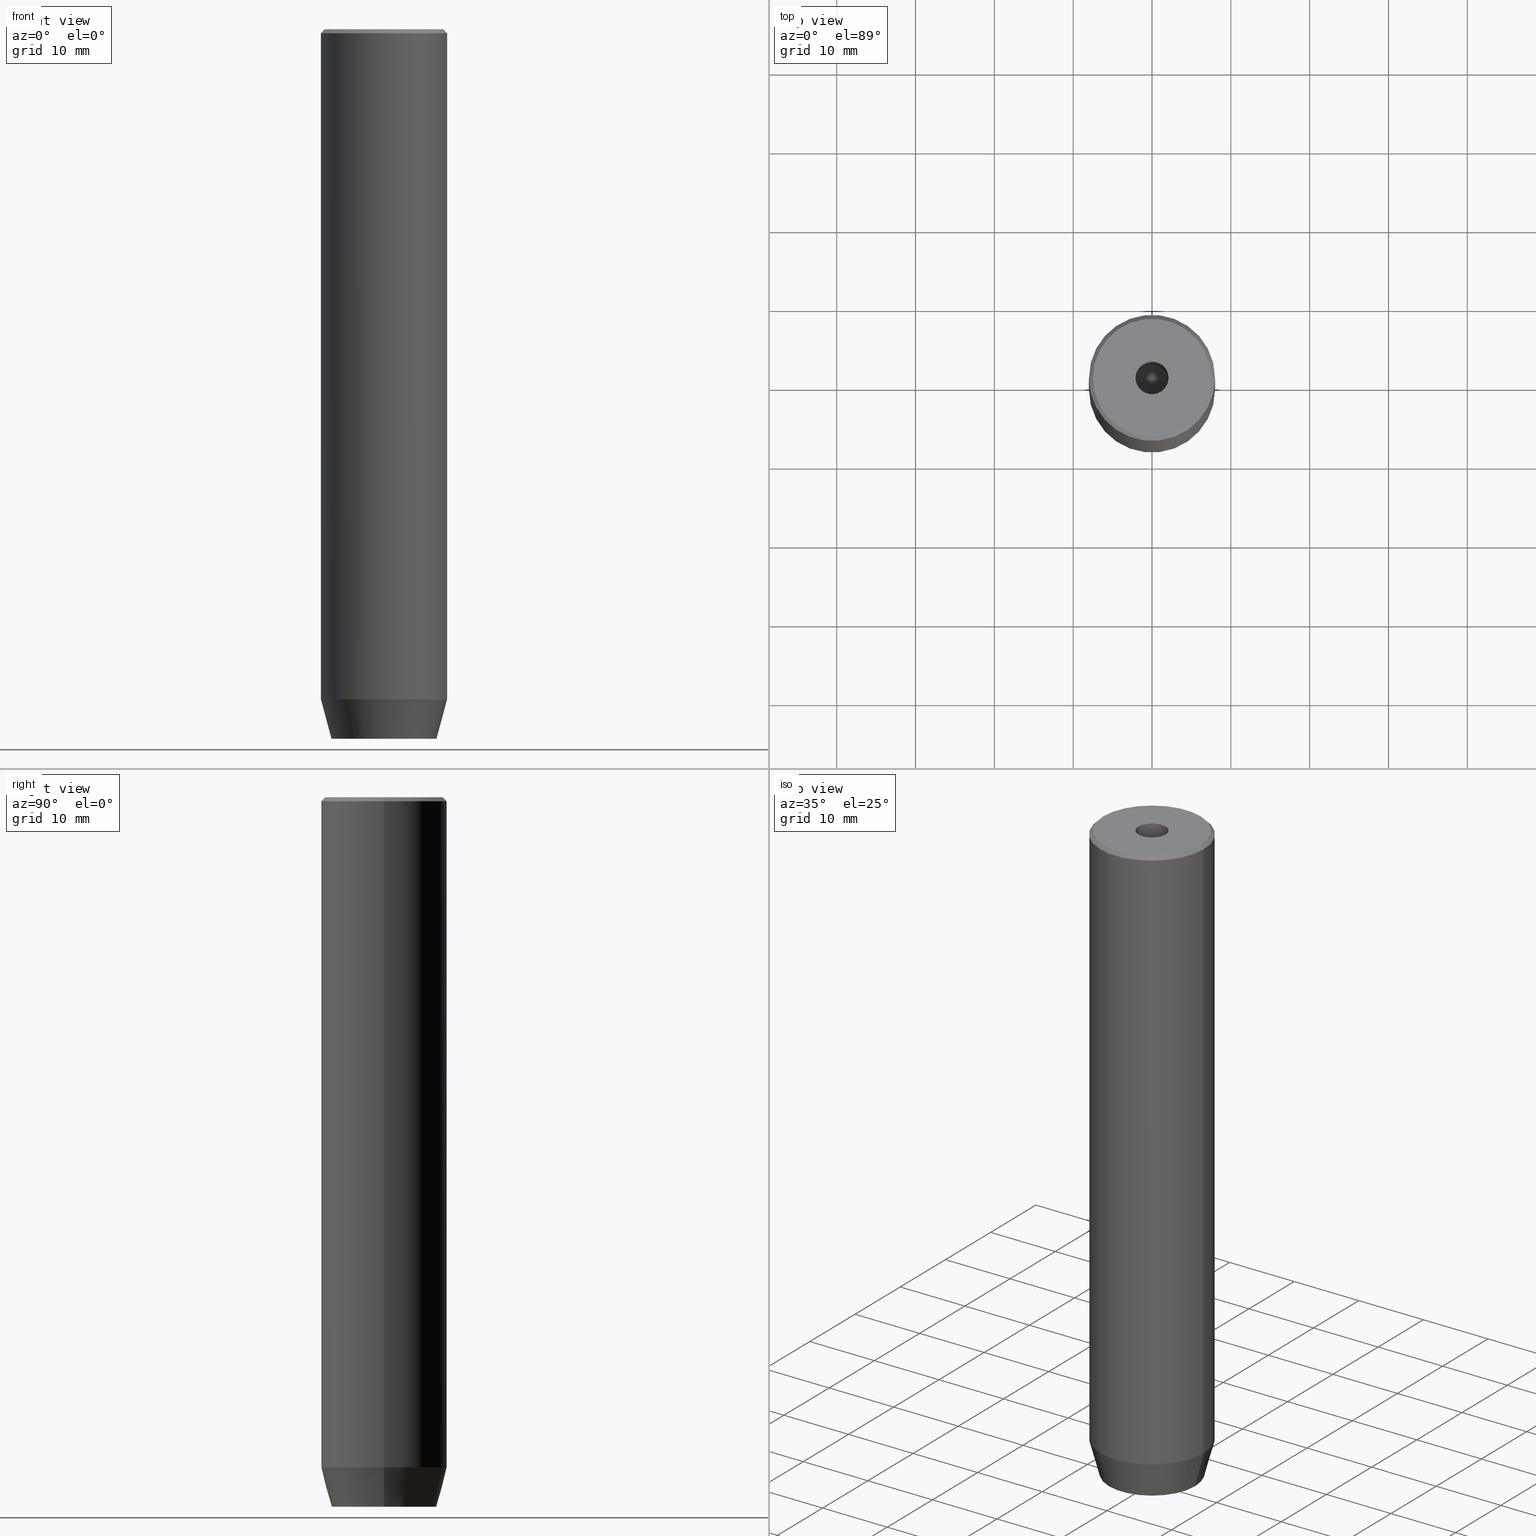
[diagram: canonical four-view strip — front | top / right | iso, engineering-drawing reading convention]
A machine part, canonical four-view strip (front | top / right | iso — engineering-drawing reading convention). The complete STEP part file that produces these views, byte-faithful:
ISO-10303-21;
HEADER;
FILE_DESCRIPTION (( 'STEP AP203' ),
    '1' );
FILE_NAME ('a7f0.STEP',
    '2024-01-02T20:40:24',
    ( '' ),
    ( '' ),
    'SwSTEP 2.0',
    'SolidWorks 2019',
    '' );
FILE_SCHEMA (( 'CONFIG_CONTROL_DESIGN' ));
ENDSEC;

DATA;
#1 = APPROVAL_ROLE ( '' ) ;
#2 = FACE_OUTER_BOUND ( 'NONE', #37, .T. ) ;
#3 = VERTEX_POINT ( 'NONE', #265 ) ;
#4 = AXIS2_PLACEMENT_3D ( 'NONE', #175, #122, #26 ) ;
#5 = PERSON ( 'NEUR�EN�', 'NEUR�EN�', 'NEUR�EN�', ('NEUR�EN�'), ('NEUR�EN�'), ('NEUR�EN�') ) ;
#6 = APPROVAL_STATUS ( 'not_yet_approved' ) ;
#7 = DIRECTION ( 'NONE',  ( -0.000000000000000000, -0.000000000000000000, 1.000000000000000000 ) ) ;
#8 = ORIENTED_EDGE ( 'NONE', *, *, #526, .T. ) ;
#9 = EDGE_CURVE ( 'NONE', #354, #73, #356, .T. ) ;
#10 = ORIENTED_EDGE ( 'NONE', *, *, #445, .F. ) ;
#11 = CIRCLE ( 'NONE', #87, 6.660254037844381969 ) ;
#12 = APPROVAL_PERSON_ORGANIZATION ( #50, #282, #502 ) ;
#13 = ORIENTED_EDGE ( 'NONE', *, *, #548, .F. ) ;
#14 = VERTEX_POINT ( 'NONE', #544 ) ;
#15 = EDGE_CURVE ( 'NONE', #387, #307, #323, .T. ) ;
#16 = ORIENTED_EDGE ( 'NONE', *, *, #381, .F. ) ;
#17 = FACE_OUTER_BOUND ( 'NONE', #120, .T. ) ;
#18 = ADVANCED_FACE ( 'NONE', ( #2 ), #178, .T. ) ;
#19 = AXIS2_PLACEMENT_3D ( 'NONE', #553, #418, #471 ) ;
#20 = ORIENTED_EDGE ( 'NONE', *, *, #512, .F. ) ;
#21 = LOCAL_TIME ( 21, 40, 24.00000000000000000, #496 ) ;
#22 = CARTESIAN_POINT ( 'NONE',  ( -2.168404344971008868E-16, -3.464101615137754830, -90.00000000000000000 ) ) ;
#23 = CYLINDRICAL_SURFACE ( 'NONE', #481, 2.099999999999997424 ) ;
#24 = ORIENTED_EDGE ( 'NONE', *, *, #518, .F. ) ;
#25 = EDGE_CURVE ( 'NONE', #479, #351, #451, .T. ) ;
#26 = DIRECTION ( 'NONE',  ( 1.000000000000000000, 0.000000000000000000, 0.000000000000000000 ) ) ;
#27 = CARTESIAN_POINT ( 'NONE',  ( 2.099999999999996092, 0.000000000000000000, -20.00000000000000000 ) ) ;
#28 = ORIENTED_EDGE ( 'NONE', *, *, #126, .F. ) ;
#29 = EDGE_CURVE ( 'NONE', #193, #351, #276, .T. ) ;
#30 = CARTESIAN_POINT ( 'NONE',  ( 0.000000000000000000, 0.000000000000000000, -20.00000000000000000 ) ) ;
#31 = DIRECTION ( 'NONE',  ( -0.000000000000000000, -0.000000000000000000, 1.000000000000000000 ) ) ;
#32 = VECTOR ( 'NONE', #408, 1000.000000000000000 ) ;
#33 = ORIENTED_EDGE ( 'NONE', *, *, #15, .T. ) ;
#34 = VECTOR ( 'NONE', #106, 1000.000000000000114 ) ;
#35 = LINE ( 'NONE', #487, #327 ) ;
#36 = CARTESIAN_POINT ( 'NONE',  ( -2.168404344971008868E-16, -3.464101615137754830, -87.20000000000000284 ) ) ;
#37 = EDGE_LOOP ( 'NONE', ( #24, #516, #100, #520 ) ) ;
#38 = CARTESIAN_POINT ( 'NONE',  ( 0.000000000000000000, 0.000000000000000000, 0.000000000000000000 ) ) ;
#39 = CARTESIAN_POINT ( 'NONE',  ( 0.000000000000000000, 0.000000000000000000, -84.99999999999998579 ) ) ;
#40 = APPLICATION_PROTOCOL_DEFINITION ( 'international standard', 'config_control_design', 1994, #336 ) ;
#41 = DIRECTION ( 'NONE',  ( 0.000000000000000000, 0.000000000000000000, -1.000000000000000000 ) ) ;
#42 = DIRECTION ( 'NONE',  ( 1.000000000000000000, 0.000000000000000000, 0.000000000000000000 ) ) ;
#43 = ORIENTED_EDGE ( 'NONE', *, *, #126, .T. ) ;
#44 = CC_DESIGN_PERSON_AND_ORGANIZATION_ASSIGNMENT ( #233, #551, ( #537 ) ) ;
#45 = AXIS2_PLACEMENT_3D ( 'NONE', #246, #294, #251 ) ;
#46 = AXIS2_PLACEMENT_3D ( 'NONE', #473, #183, #480 ) ;
#47 = CARTESIAN_POINT ( 'NONE',  ( -2.168404344971008868E-16, 3.464101615137754830, -90.00000000000000000 ) ) ;
#48 = DATE_AND_TIME ( #190, #432 ) ;
#49 = LINE ( 'NONE', #421, #514 ) ;
#50 = PERSON_AND_ORGANIZATION ( #5, #422 ) ;
#51 = DIRECTION ( 'NONE',  ( 1.000000000000000000, 0.000000000000000000, 0.000000000000000000 ) ) ;
#52 = DATE_TIME_ROLE ( 'classification_date' ) ;
#53 = EDGE_LOOP ( 'NONE', ( #198, #174, #243, #160 ) ) ;
#54 = AXIS2_PLACEMENT_3D ( 'NONE', #57, #197, #62 ) ;
#55 = COORDINATED_UNIVERSAL_TIME_OFFSET ( 1, 0, .AHEAD. ) ;
#56 = EDGE_LOOP ( 'NONE', ( #391, #572, #300 ) ) ;
#57 = CARTESIAN_POINT ( 'NONE',  ( 0.000000000000000000, 0.000000000000000000, -20.00000000000000000 ) ) ;
#58 = ORIENTED_EDGE ( 'NONE', *, *, #134, .F. ) ;
#59 = LINE ( 'NONE', #288, #558 ) ;
#60 = CIRCLE ( 'NONE', #396, 2.099999999999996092 ) ;
#61 = ORIENTED_EDGE ( 'NONE', *, *, #376, .F. ) ;
#62 = DIRECTION ( 'NONE',  ( 1.000000000000000000, 0.000000000000000000, 0.000000000000000000 ) ) ;
#63 = EDGE_CURVE ( 'NONE', #124, #430, #49, .T. ) ;
#64 = DIRECTION ( 'NONE',  ( 0.8660254037844385966, -0.5000000000000001110, 0.000000000000000000 ) ) ;
#65 = ORIENTED_EDGE ( 'NONE', *, *, #69, .T. ) ;
#66 = CARTESIAN_POINT ( 'NONE',  ( 0.000000000000000000, 0.000000000000000000, -87.20000000000000284 ) ) ;
#67 = DIRECTION ( 'NONE',  ( 0.5000000000000001110, 0.8660254037844385966, -0.000000000000000000 ) ) ;
#68 = AXIS2_PLACEMENT_3D ( 'NONE', #489, #571, #350 ) ;
#69 = EDGE_CURVE ( 'NONE', #307, #3, #186, .T. ) ;
#70 = EDGE_LOOP ( 'NONE', ( #232, #559, #8, #439, #250, #281 ) ) ;
#71 = DIRECTION ( 'NONE',  ( 0.5000000000000001110, -0.8660254037844385966, 0.000000000000000000 ) ) ;
#72 = LINE ( 'NONE', #528, #270 ) ;
#73 = VERTEX_POINT ( 'NONE', #131 ) ;
#74 = FACE_BOUND ( 'NONE', #76, .T. ) ;
#75 = CARTESIAN_POINT ( 'NONE',  ( 0.000000000000000000, 0.000000000000000000, 0.000000000000000000 ) ) ;
#76 = EDGE_LOOP ( 'NONE', ( #579, #484 ) ) ;
#77 = CARTESIAN_POINT ( 'NONE',  ( -8.000000000000000000, 9.797174393178825657E-16, 0.000000000000000000 ) ) ;
#78 = LINE ( 'NONE', #337, #155 ) ;
#79 = CIRCLE ( 'NONE', #154, 7.499999999999978684 ) ;
#80 = ORIENTED_EDGE ( 'NONE', *, *, #15, .F. ) ;
#81 = LINE ( 'NONE', #218, #102 ) ;
#82 = CARTESIAN_POINT ( 'NONE',  ( -6.660254037844381969, 8.976816591066591237E-16, -90.00000000000000000 ) ) ;
#83 = ORIENTED_EDGE ( 'NONE', *, *, #402, .T. ) ;
#84 = CALENDAR_DATE ( 2024, 2, 1 ) ;
#85 = ORIENTED_EDGE ( 'NONE', *, *, #425, .F. ) ;
#86 = CARTESIAN_POINT ( 'NONE',  ( 1.500000000000000222, -2.598076211353315568, -87.20000000000000284 ) ) ;
#87 = AXIS2_PLACEMENT_3D ( 'NONE', #497, #318, #260 ) ;
#88 = DIRECTION ( 'NONE',  ( 1.000000000000000000, 0.000000000000000000, 0.000000000000000000 ) ) ;
#89 = COORDINATED_UNIVERSAL_TIME_OFFSET ( 1, 0, .AHEAD. ) ;
#90 = FACE_OUTER_BOUND ( 'NONE', #326, .T. ) ;
#91 = PERSON_AND_ORGANIZATION ( #5, #422 ) ;
#92 = VERTEX_POINT ( 'NONE', #188 ) ;
#93 = UNCERTAINTY_MEASURE_WITH_UNIT (LENGTH_MEASURE( 1.000000000000000082E-05 ), #543, 'distance_accuracy_value', 'NONE');
#94 = CLOSED_SHELL ( 'NONE', ( #264, #586, #556, #237, #274, #392, #527, #18, #192, #151, #324, #506, #322, #409, #280, #293, #504, #147, #325 ) ) ;
#95 = AXIS2_PLACEMENT_3D ( 'NONE', #277, #355, #132 ) ;
#96 = CC_DESIGN_APPROVAL ( #152, ( #537 ) ) ;
#97 = APPROVAL_DATE_TIME ( #374, #110 ) ;
#98 = CC_DESIGN_PERSON_AND_ORGANIZATION_ASSIGNMENT ( #275, #135, ( #257 ) ) ;
#99 = SHAPE_DEFINITION_REPRESENTATION ( #305, #463 ) ;
#100 = ORIENTED_EDGE ( 'NONE', *, *, #189, .T. ) ;
#101 = ORIENTED_EDGE ( 'NONE', *, *, #142, .F. ) ;
#102 = VECTOR ( 'NONE', #161, 1000.000000000000000 ) ;
#103 = ORIENTED_EDGE ( 'NONE', *, *, #388, .F. ) ;
#104 = DIRECTION ( 'NONE',  ( -0.000000000000000000, -0.000000000000000000, 1.000000000000000000 ) ) ;
#105 = ORIENTED_EDGE ( 'NONE', *, *, #563, .T. ) ;
#106 = DIRECTION ( 'NONE',  ( 0.7071067811865474617, 8.659560562354932858E-17, -0.7071067811865474617 ) ) ;
#107 = DIRECTION ( 'NONE',  ( 0.8660254037844385966, -0.5000000000000001110, 0.000000000000000000 ) ) ;
#108 = ORIENTED_EDGE ( 'NONE', *, *, #518, .T. ) ;
#109 = CARTESIAN_POINT ( 'NONE',  ( -3.000000000000000000, -1.732050807568877859, -87.20000000000000284 ) ) ;
#110 = APPROVAL ( #6, 'NEUR�EN�' ) ;
#111 = FACE_OUTER_BOUND ( 'NONE', #328, .T. ) ;
#112 = CONICAL_SURFACE ( 'NONE', #357, 8.000000000000000000, 0.2617993877991500740 ) ;
#113 = EDGE_LOOP ( 'NONE', ( #144, #108, #365, #338 ) ) ;
#114 = AXIS2_PLACEMENT_3D ( 'NONE', #268, #407, #384 ) ;
#115 = LINE ( 'NONE', #205, #541 ) ;
#116 = CARTESIAN_POINT ( 'NONE',  ( -1.499999999999999556, 2.598076211353316012, -87.20000000000000284 ) ) ;
#117 = ORIENTED_EDGE ( 'NONE', *, *, #121, .F. ) ;
#118 = LINE ( 'NONE', #437, #310 ) ;
#119 = FACE_OUTER_BOUND ( 'NONE', #113, .T. ) ;
#120 = EDGE_LOOP ( 'NONE', ( #170, #291, #536, #217 ) ) ;
#121 = EDGE_CURVE ( 'NONE', #569, #577, #317, .T. ) ;
#122 = DIRECTION ( 'NONE',  ( 0.000000000000000000, 0.000000000000000000, -1.000000000000000000 ) ) ;
#123 = DIRECTION ( 'NONE',  ( -2.503857664561932376E-16, 1.000000000000000000, 0.000000000000000000 ) ) ;
#124 = VERTEX_POINT ( 'NONE', #269 ) ;
#125 = AXIS2_PLACEMENT_3D ( 'NONE', #587, #539, #546 ) ;
#126 = EDGE_CURVE ( 'NONE', #213, #380, #79, .T. ) ;
#127 = FACE_OUTER_BOUND ( 'NONE', #428, .T. ) ;
#128 = PERSON_AND_ORGANIZATION ( #5, #422 ) ;
#129 = DIRECTION ( 'NONE',  ( -0.8660254037844385966, -0.5000000000000001110, 0.000000000000000000 ) ) ;
#130 = DIRECTION ( 'NONE',  ( -0.000000000000000000, -0.000000000000000000, -1.000000000000000000 ) ) ;
#131 = CARTESIAN_POINT ( 'NONE',  ( 6.660254037844381969, 0.000000000000000000, -90.00000000000000000 ) ) ;
#132 = DIRECTION ( 'NONE',  ( 1.000000000000000000, 0.000000000000000000, 0.000000000000000000 ) ) ;
#133 = LINE ( 'NONE', #542, #286 ) ;
#134 = EDGE_CURVE ( 'NONE', #351, #343, #360, .T. ) ;
#135 = PERSON_AND_ORGANIZATION_ROLE ( 'design_supplier' ) ;
#136 = DIRECTION ( 'NONE',  ( -0.000000000000000000, -0.000000000000000000, 1.000000000000000000 ) ) ;
#137 = AXIS2_PLACEMENT_3D ( 'NONE', #223, #503, #185 ) ;
#138 = AXIS2_PLACEMENT_3D ( 'NONE', #522, #578, #168 ) ;
#139 = APPROVAL_PERSON_ORGANIZATION ( #128, #152, #313 ) ;
#140 = DATE_AND_TIME ( #320, #212 ) ;
#141 = DIRECTION ( 'NONE',  ( 1.000000000000000000, 0.000000000000000000, 0.000000000000000000 ) ) ;
#142 = EDGE_CURVE ( 'NONE', #258, #3, #368, .T. ) ;
#143 = DATE_TIME_ROLE ( 'creation_date' ) ;
#144 = ORIENTED_EDGE ( 'NONE', *, *, #466, .T. ) ;
#145 = PERSON_AND_ORGANIZATION ( #5, #422 ) ;
#146 = VERTEX_POINT ( 'NONE', #321 ) ;
#147 = ADVANCED_FACE ( 'NONE', ( #90 ), #419, .F. ) ;
#148 = CIRCLE ( 'NONE', #179, 2.099999999999998757 ) ;
#149 = SECURITY_CLASSIFICATION_LEVEL ( 'unclassified' ) ;
#150 = EDGE_LOOP ( 'NONE', ( #284, #16, #20, #510, #534, #58 ) ) ;
#151 = ADVANCED_FACE ( 'NONE', ( #227 ), #431, .T. ) ;
#152 = APPROVAL ( #403, 'NEUR�EN�' ) ;
#153 = EDGE_LOOP ( 'NONE', ( #467, #43 ) ) ;
#154 = AXIS2_PLACEMENT_3D ( 'NONE', #225, #314, #184 ) ;
#155 = VECTOR ( 'NONE', #523, 1000.000000000000000 ) ;
#156 = DIRECTION ( 'NONE',  ( -0.000000000000000000, -0.000000000000000000, 1.000000000000000000 ) ) ;
#157 = APPLICATION_CONTEXT ( 'configuration controlled 3d designs of mechanical parts and assemblies' ) ;
#158 = EDGE_LOOP ( 'NONE', ( #80, #447, #427, #163 ) ) ;
#159 = CARTESIAN_POINT ( 'NONE',  ( -3.000000000000000000, -1.732050807568877859, -87.20000000000000284 ) ) ;
#160 = ORIENTED_EDGE ( 'NONE', *, *, #436, .F. ) ;
#161 = DIRECTION ( 'NONE',  ( 0.000000000000000000, -1.000000000000000000, 0.000000000000000000 ) ) ;
#162 = CARTESIAN_POINT ( 'NONE',  ( -8.000000000000000000, 9.797174393178825657E-16, -84.99999999999998579 ) ) ;
#163 = ORIENTED_EDGE ( 'NONE', *, *, #308, .T. ) ;
#164 = CARTESIAN_POINT ( 'NONE',  ( 3.000000000000000000, 0.000000000000000000, -87.20000000000000284 ) ) ;
#165 = CARTESIAN_POINT ( 'NONE',  ( 1.500000000000000222, 2.598076211353315568, -87.20000000000000284 ) ) ;
#166 = CC_DESIGN_APPROVAL ( #110, ( #457 ) ) ;
#167 = EDGE_LOOP ( 'NONE', ( #28, #383, #329, #488 ) ) ;
#168 = DIRECTION ( 'NONE',  ( 1.000000000000000000, 0.000000000000000000, 0.000000000000000000 ) ) ;
#169 = FACE_OUTER_BOUND ( 'NONE', #555, .T. ) ;
#170 = ORIENTED_EDGE ( 'NONE', *, *, #477, .T. ) ;
#171 = DIRECTION ( 'NONE',  ( -0.000000000000000000, -0.000000000000000000, 1.000000000000000000 ) ) ;
#172 = LINE ( 'NONE', #353, #583 ) ;
#173 = CARTESIAN_POINT ( 'NONE',  ( 0.000000000000000000, 0.000000000000000000, -20.00000000000000000 ) ) ;
#174 = ORIENTED_EDGE ( 'NONE', *, *, #469, .F. ) ;
#175 = CARTESIAN_POINT ( 'NONE',  ( 0.000000000000000000, 0.000000000000000000, -0.5000000000000213163 ) ) ;
#176 = DIRECTION ( 'NONE',  ( -0.8571673007021111124, 1.049727191138617217E-16, 0.5150380749100562650 ) ) ;
#177 = AXIS2_PLACEMENT_3D ( 'NONE', #552, #416, #141 ) ;
#178 = CYLINDRICAL_SURFACE ( 'NONE', #137, 8.000000000000000000 ) ;
#179 = AXIS2_PLACEMENT_3D ( 'NONE', #441, #31, #398 ) ;
#180 = CC_DESIGN_APPROVAL ( #282, ( #257 ) ) ;
#181 = EDGE_CURVE ( 'NONE', #258, #387, #470, .T. ) ;
#182 = CARTESIAN_POINT ( 'NONE',  ( -3.000000000000000888, 1.732050807568876527, -87.20000000000000284 ) ) ;
#183 = DIRECTION ( 'NONE',  ( 0.000000000000000000, 0.000000000000000000, -1.000000000000000000 ) ) ;
#184 = DIRECTION ( 'NONE',  ( 1.000000000000000000, 0.000000000000000000, 0.000000000000000000 ) ) ;
#185 = DIRECTION ( 'NONE',  ( 1.000000000000000000, 0.000000000000000000, 0.000000000000000000 ) ) ;
#186 = CIRCLE ( 'NONE', #254, 2.099999999999998757 ) ;
#187 = AXIS2_PLACEMENT_3D ( 'NONE', #38, #304, #259 ) ;
#188 = CARTESIAN_POINT ( 'NONE',  ( 8.000000000000000000, 0.000000000000000000, -84.99999999999998579 ) ) ;
#189 = EDGE_CURVE ( 'NONE', #92, #529, #375, .T. ) ;
#190 = CALENDAR_DATE ( 2024, 2, 1 ) ;
#191 = ORIENTED_EDGE ( 'NONE', *, *, #521, .F. ) ;
#192 = ADVANCED_FACE ( 'NONE', ( #111 ), #561, .T. ) ;
#193 = VERTEX_POINT ( 'NONE', #568 ) ;
#194 = VECTOR ( 'NONE', #156, 1000.000000000000000 ) ;
#195 = APPROVAL_PERSON_ORGANIZATION ( #145, #110, #1 ) ;
#196 = ORIENTED_EDGE ( 'NONE', *, *, #289, .F. ) ;
#197 = DIRECTION ( 'NONE',  ( -0.000000000000000000, -0.000000000000000000, 1.000000000000000000 ) ) ;
#198 = ORIENTED_EDGE ( 'NONE', *, *, #485, .F. ) ;
#199 = VECTOR ( 'NONE', #462, 999.9999999999998863 ) ;
#200 = VECTOR ( 'NONE', #130, 1000.000000000000000 ) ;
#201 = CARTESIAN_POINT ( 'NONE',  ( -3.000000000000000888, 1.732050807568876527, -87.20000000000000284 ) ) ;
#202 = VERTEX_POINT ( 'NONE', #162 ) ;
#203 = CARTESIAN_POINT ( 'NONE',  ( 8.000000000000000000, 0.000000000000000000, 0.000000000000000000 ) ) ;
#204 = ORIENTED_EDGE ( 'NONE', *, *, #25, .T. ) ;
#205 = CARTESIAN_POINT ( 'NONE',  ( 3.000000000000000000, 1.732050807568876527, -87.20000000000000284 ) ) ;
#206 = DIRECTION ( 'NONE',  ( 1.000000000000000000, 0.000000000000000000, 0.000000000000000000 ) ) ;
#207 = EDGE_LOOP ( 'NONE', ( #435, #191, #472, #204 ) ) ;
#208 = LINE ( 'NONE', #486, #331 ) ;
#209 = EDGE_CURVE ( 'NONE', #479, #459, #72, .T. ) ;
#210 = CIRCLE ( 'NONE', #138, 8.000000000000000000 ) ;
#211 = PLANE ( 'NONE',  #456 ) ;
#212 = LOCAL_TIME ( 21, 40, 24.00000000000000000, #509 ) ;
#213 = VERTEX_POINT ( 'NONE', #390 ) ;
#214 = DIRECTION ( 'NONE',  ( -0.000000000000000000, -0.000000000000000000, -1.000000000000000000 ) ) ;
#215 = PLANE ( 'NONE',  #297 ) ;
#216 = FACE_OUTER_BOUND ( 'NONE', #56, .T. ) ;
#217 = ORIENTED_EDGE ( 'NONE', *, *, #521, .T. ) ;
#218 = CARTESIAN_POINT ( 'NONE',  ( 3.000000000000000000, 0.000000000000000000, -90.00000000000000000 ) ) ;
#219 = LINE ( 'NONE', #581, #426 ) ;
#220 = CARTESIAN_POINT ( 'NONE',  ( -1.499999999999999556, 2.598076211353316012, -90.00000000000000000 ) ) ;
#221 = DIRECTION ( 'NONE',  ( -1.000000000000000000, 0.000000000000000000, -0.000000000000000000 ) ) ;
#222 =( NAMED_UNIT ( * ) PLANE_ANGLE_UNIT ( ) SI_UNIT ( $, .RADIAN. ) );
#223 = CARTESIAN_POINT ( 'NONE',  ( 0.000000000000000000, 0.000000000000000000, 0.000000000000000000 ) ) ;
#224 = AXIS2_PLACEMENT_3D ( 'NONE', #173, #564, #42 ) ;
#225 = CARTESIAN_POINT ( 'NONE',  ( 0.000000000000000000, 0.000000000000000000, 0.000000000000000000 ) ) ;
#226 = EDGE_CURVE ( 'NONE', #380, #14, #35, .T. ) ;
#227 = FACE_OUTER_BOUND ( 'NONE', #53, .T. ) ;
#228 = APPROVAL_DATE_TIME ( #453, #152 ) ;
#229 = ORIENTED_EDGE ( 'NONE', *, *, #181, .T. ) ;
#230 = VECTOR ( 'NONE', #136, 1000.000000000000000 ) ;
#231 = CIRCLE ( 'NONE', #4, 8.000000000000000000 ) ;
#232 = ORIENTED_EDGE ( 'NONE', *, *, #346, .T. ) ;
#233 = PERSON_AND_ORGANIZATION ( #5, #422 ) ;
#234 = ORIENTED_EDGE ( 'NONE', *, *, #9, .T. ) ;
#235 = EDGE_CURVE ( 'NONE', #490, #146, #299, .T. ) ;
#236 = ORIENTED_EDGE ( 'NONE', *, *, #563, .F. ) ;
#237 = ADVANCED_FACE ( 'NONE', ( #169 ), #112, .T. ) ;
#238 = FACE_OUTER_BOUND ( 'NONE', #167, .T. ) ;
#239 = AXIS2_PLACEMENT_3D ( 'NONE', #405, #71, #448 ) ;
#240 = CC_DESIGN_SECURITY_CLASSIFICATION ( #457, ( #257 ) ) ;
#241 = ORIENTED_EDGE ( 'NONE', *, *, #346, .F. ) ;
#242 = FACE_OUTER_BOUND ( 'NONE', #158, .T. ) ;
#243 = ORIENTED_EDGE ( 'NONE', *, *, #226, .T. ) ;
#244 = PLANE ( 'NONE',  #370 ) ;
#245 = AXIS2_PLACEMENT_3D ( 'NONE', #312, #494, #88 ) ;
#246 = CARTESIAN_POINT ( 'NONE',  ( 0.000000000000000000, 0.000000000000000000, 0.000000000000000000 ) ) ;
#247 = EDGE_LOOP ( 'NONE', ( #508, #540, #196, #404 ) ) ;
#248 = PLANE ( 'NONE',  #443 ) ;
#249 = DIRECTION ( 'NONE',  ( 1.000000000000000000, 0.000000000000000000, 0.000000000000000000 ) ) ;
#250 = ORIENTED_EDGE ( 'NONE', *, *, #289, .T. ) ;
#251 = DIRECTION ( 'NONE',  ( 1.000000000000000000, 0.000000000000000000, 0.000000000000000000 ) ) ;
#252 = ORIENTED_EDGE ( 'NONE', *, *, #424, .T. ) ;
#253 = CARTESIAN_POINT ( 'NONE',  ( 3.000000000000000000, -1.732050807568876527, -87.20000000000000284 ) ) ;
#254 = AXIS2_PLACEMENT_3D ( 'NONE', #582, #7, #273 ) ;
#255 = AXIS2_PLACEMENT_3D ( 'NONE', #461, #373, #51 ) ;
#256 = DIRECTION ( 'NONE',  ( -0.8660254037844385966, 0.5000000000000001110, 0.000000000000000000 ) ) ;
#257 = PRODUCT_DEFINITION_FORMATION_WITH_SPECIFIED_SOURCE ( 'LIBOVOLN�', '', #532, .NOT_KNOWN. ) ;
#258 = VERTEX_POINT ( 'NONE', #27 ) ;
#259 = DIRECTION ( 'NONE',  ( 1.000000000000000000, 0.000000000000000000, 0.000000000000000000 ) ) ;
#260 = DIRECTION ( 'NONE',  ( 1.000000000000000000, 0.000000000000000000, 0.000000000000000000 ) ) ;
#261 = CARTESIAN_POINT ( 'NONE',  ( 3.000000000000000000, -1.732050807568876527, -87.20000000000000284 ) ) ;
#262 = DIRECTION ( 'NONE',  ( -0.000000000000000000, -0.000000000000000000, 1.000000000000000000 ) ) ;
#263 = CARTESIAN_POINT ( 'NONE',  ( -2.099999999999996092, 2.571758278209436534E-16, -20.00000000000000000 ) ) ;
#264 = ADVANCED_FACE ( 'NONE', ( #290 ), #23, .F. ) ;
#265 = CARTESIAN_POINT ( 'NONE',  ( 2.099999999999998757, 0.000000000000000000, -1.990051048614449116E-16 ) ) ;
#266 = PLANE ( 'NONE',  #239 ) ;
#267 = VECTOR ( 'NONE', #414, 999.9999999999998863 ) ;
#268 = CARTESIAN_POINT ( 'NONE',  ( 0.000000000000000000, 0.000000000000000000, 0.000000000000000000 ) ) ;
#269 = CARTESIAN_POINT ( 'NONE',  ( 3.000000000000000000, -1.732050807568876527, -90.00000000000000000 ) ) ;
#270 = VECTOR ( 'NONE', #107, 1000.000000000000000 ) ;
#271 = CARTESIAN_POINT ( 'NONE',  ( 8.000000000000000000, 0.000000000000000000, -0.5000000000000213163 ) ) ;
#272 = CARTESIAN_POINT ( 'NONE',  ( -1.499999999999999556, 2.598076211353316012, -87.20000000000000284 ) ) ;
#273 = DIRECTION ( 'NONE',  ( 1.000000000000000000, 0.000000000000000000, 0.000000000000000000 ) ) ;
#274 = ADVANCED_FACE ( 'NONE', ( #119 ), #306, .T. ) ;
#275 = PERSON_AND_ORGANIZATION ( #5, #422 ) ;
#276 = LINE ( 'NONE', #220, #199 ) ;
#277 = CARTESIAN_POINT ( 'NONE',  ( 0.000000000000000000, 0.000000000000000000, 0.000000000000000000 ) ) ;
#278 = VECTOR ( 'NONE', #301, 1000.000000000000000 ) ;
#279 = CALENDAR_DATE ( 2024, 2, 1 ) ;
#280 = ADVANCED_FACE ( 'NONE', ( #17 ), #394, .F. ) ;
#281 = ORIENTED_EDGE ( 'NONE', *, *, #548, .T. ) ;
#282 = APPROVAL ( #557, 'NEUR�EN�' ) ;
#283 = EDGE_LOOP ( 'NONE', ( #10, #33, #65, #101 ) ) ;
#284 = ORIENTED_EDGE ( 'NONE', *, *, #29, .F. ) ;
#285 = VECTOR ( 'NONE', #262, 1000.000000000000000 ) ;
#286 = VECTOR ( 'NONE', #411, 1000.000000000000000 ) ;
#287 = ORIENTED_EDGE ( 'NONE', *, *, #341, .F. ) ;
#288 = CARTESIAN_POINT ( 'NONE',  ( -3.000000000000000444, -7.511572993685800087E-16, -87.20000000000000284 ) ) ;
#289 = EDGE_CURVE ( 'NONE', #577, #490, #78, .T. ) ;
#290 = FACE_OUTER_BOUND ( 'NONE', #283, .T. ) ;
#291 = ORIENTED_EDGE ( 'NONE', *, *, #424, .F. ) ;
#292 = FACE_OUTER_BOUND ( 'NONE', #70, .T. ) ;
#293 = ADVANCED_FACE ( 'NONE', ( #474 ), #211, .F. ) ;
#294 = DIRECTION ( 'NONE',  ( -0.000000000000000000, -0.000000000000000000, 1.000000000000000000 ) ) ;
#295 = VERTEX_POINT ( 'NONE', #446 ) ;
#296 = DIRECTION ( 'NONE',  ( 2.503857664561933362E-16, -1.000000000000000000, 0.000000000000000000 ) ) ;
#297 = AXIS2_PLACEMENT_3D ( 'NONE', #116, #401, #302 ) ;
#298 = CONICAL_SURFACE ( 'NONE', #46, 7.499999999999978684, 0.7853981633974482790 ) ;
#299 = LINE ( 'NONE', #159, #410 ) ;
#300 = ORIENTED_EDGE ( 'NONE', *, *, #445, .T. ) ;
#301 = DIRECTION ( 'NONE',  ( 0.000000000000000000, -1.000000000000000000, 0.000000000000000000 ) ) ;
#302 = DIRECTION ( 'NONE',  ( -0.8660254037844387076, -0.4999999999999999445, 0.000000000000000000 ) ) ;
#303 = ORIENTED_EDGE ( 'NONE', *, *, #25, .F. ) ;
#304 = DIRECTION ( 'NONE',  ( -0.000000000000000000, -0.000000000000000000, 1.000000000000000000 ) ) ;
#305 = PRODUCT_DEFINITION_SHAPE ( 'NONE', 'NONE',  #537 ) ;
#306 = CYLINDRICAL_SURFACE ( 'NONE', #45, 8.000000000000000000 ) ;
#307 = VERTEX_POINT ( 'NONE', #565 ) ;
#308 = EDGE_CURVE ( 'NONE', #3, #307, #148, .T. ) ;
#309 = LINE ( 'NONE', #580, #34 ) ;
#310 = VECTOR ( 'NONE', #444, 1000.000000000000000 ) ;
#311 = VERTEX_POINT ( 'NONE', #201 ) ;
#312 = CARTESIAN_POINT ( 'NONE',  ( 0.000000000000000000, 0.000000000000000000, -0.5000000000000213163 ) ) ;
#313 = APPROVAL_ROLE ( '' ) ;
#314 = DIRECTION ( 'NONE',  ( -0.000000000000000000, -0.000000000000000000, 1.000000000000000000 ) ) ;
#315 = FACE_OUTER_BOUND ( 'NONE', #560, .T. ) ;
#316 =( NAMED_UNIT ( * ) SI_UNIT ( $, .STERADIAN. ) SOLID_ANGLE_UNIT ( ) );
#317 = LINE ( 'NONE', #86, #330 ) ;
#318 = DIRECTION ( 'NONE',  ( -0.000000000000000000, -0.000000000000000000, 1.000000000000000000 ) ) ;
#319 = VECTOR ( 'NONE', #440, 1000.000000000000000 ) ;
#320 = CALENDAR_DATE ( 2024, 2, 1 ) ;
#321 = CARTESIAN_POINT ( 'NONE',  ( -3.000000000000000000, -1.732050807568877859, -90.00000000000000000 ) ) ;
#322 = ADVANCED_FACE ( 'NONE', ( #576 ), #519, .F. ) ;
#323 = LINE ( 'NONE', #413, #285 ) ;
#324 = ADVANCED_FACE ( 'NONE', ( #434 ), #215, .F. ) ;
#325 = ADVANCED_FACE ( 'NONE', ( #242 ), #386, .F. ) ;
#326 = EDGE_LOOP ( 'NONE', ( #103, #334, #229 ) ) ;
#327 = VECTOR ( 'NONE', #333, 1000.000000000000114 ) ;
#328 = EDGE_LOOP ( 'NONE', ( #85, #234, #105, #287 ) ) ;
#329 = ORIENTED_EDGE ( 'NONE', *, *, #362, .F. ) ;
#330 = VECTOR ( 'NONE', #129, 1000.000000000000000 ) ;
#331 = VECTOR ( 'NONE', #538, 1000.000000000000000 ) ;
#332 = CONICAL_SURFACE ( 'NONE', #224, 2.099999999999996092, 1.029744258676652091 ) ;
#333 = DIRECTION ( 'NONE',  ( -0.7071067811865474617, 0.000000000000000000, -0.7071067811865474617 ) ) ;
#334 = ORIENTED_EDGE ( 'NONE', *, *, #455, .T. ) ;
#335 = MECHANICAL_CONTEXT ( 'NONE', #336, 'mechanical' ) ;
#336 = APPLICATION_CONTEXT ( 'configuration controlled 3d designs of mechanical parts and assemblies' ) ;
#337 = CARTESIAN_POINT ( 'NONE',  ( -1.500000000000000666, -2.598076211353316456, -87.20000000000000284 ) ) ;
#338 = ORIENTED_EDGE ( 'NONE', *, *, #189, .F. ) ;
#339 = PERSON_AND_ORGANIZATION ( #5, #422 ) ;
#340 = DIRECTION ( 'NONE',  ( -1.000000000000000000, -2.503857664561933362E-16, 0.000000000000000000 ) ) ;
#341 = EDGE_CURVE ( 'NONE', #202, #92, #385, .T. ) ;
#342 = DIRECTION ( 'NONE',  ( -0.000000000000000000, -0.000000000000000000, 1.000000000000000000 ) ) ;
#343 = VERTEX_POINT ( 'NONE', #450 ) ;
#344 = CIRCLE ( 'NONE', #245, 8.000000000000000000 ) ;
#345 = DIRECTION ( 'NONE',  ( 0.000000000000000000, 0.000000000000000000, -1.000000000000000000 ) ) ;
#346 = EDGE_CURVE ( 'NONE', #311, #479, #406, .T. ) ;
#347 = DIRECTION ( 'NONE',  ( -0.5000000000000001110, -0.8660254037844385966, 0.000000000000000000 ) ) ;
#348 = ORIENTED_EDGE ( 'NONE', *, *, #9, .F. ) ;
#349 = CARTESIAN_POINT ( 'NONE',  ( -1.084202172485504434E-16, 3.464101615137754830, -87.20000000000000284 ) ) ;
#350 = DIRECTION ( 'NONE',  ( -0.000000000000000000, 0.000000000000000000, -1.000000000000000000 ) ) ;
#351 = VERTEX_POINT ( 'NONE', #47 ) ;
#352 = LINE ( 'NONE', #253, #573 ) ;
#353 = CARTESIAN_POINT ( 'NONE',  ( -3.000000000000000444, -7.511572993685800087E-16, -90.00000000000000000 ) ) ;
#354 = VERTEX_POINT ( 'NONE', #82 ) ;
#355 = DIRECTION ( 'NONE',  ( 0.000000000000000000, -0.000000000000000000, 1.000000000000000000 ) ) ;
#356 = CIRCLE ( 'NONE', #177, 6.660254037844381969 ) ;
#357 = AXIS2_PLACEMENT_3D ( 'NONE', #533, #342, #429 ) ;
#358 = FACE_BOUND ( 'NONE', #150, .T. ) ;
#359 = APPLICATION_PROTOCOL_DEFINITION ( 'international standard', 'config_control_design', 1994, #157 ) ;
#360 = LINE ( 'NONE', #501, #491 ) ;
#361 = CC_DESIGN_DATE_AND_TIME_ASSIGNMENT ( #140, #52, ( #457 ) ) ;
#362 = EDGE_CURVE ( 'NONE', #14, #529, #344, .T. ) ;
#363 = DIRECTION ( 'NONE',  ( 1.000000000000000000, 0.000000000000000000, 0.000000000000000000 ) ) ;
#364 = LINE ( 'NONE', #412, #500 ) ;
#365 = ORIENTED_EDGE ( 'NONE', *, *, #362, .T. ) ;
#366 = EDGE_CURVE ( 'NONE', #73, #354, #11, .T. ) ;
#367 = DIRECTION ( 'NONE',  ( -0.000000000000000000, -0.000000000000000000, 1.000000000000000000 ) ) ;
#368 = LINE ( 'NONE', #549, #230 ) ;
#369 = CC_DESIGN_PERSON_AND_ORGANIZATION_ASSIGNMENT ( #420, #415, ( #457 ) ) ;
#370 = AXIS2_PLACEMENT_3D ( 'NONE', #66, #345, #433 ) ;
#371 = CARTESIAN_POINT ( 'NONE',  ( -1.084202172485504434E-16, 3.464101615137754830, -87.20000000000000284 ) ) ;
#372 = CALENDAR_DATE ( 2024, 2, 1 ) ;
#373 = DIRECTION ( 'NONE',  ( -0.000000000000000000, -0.000000000000000000, 1.000000000000000000 ) ) ;
#374 = DATE_AND_TIME ( #279, #507 ) ;
#375 = LINE ( 'NONE', #203, #194 ) ;
#376 = EDGE_CURVE ( 'NONE', #577, #430, #133, .T. ) ;
#377 = PERSON_AND_ORGANIZATION_ROLE ( 'creator' ) ;
#378 = AXIS2_PLACEMENT_3D ( 'NONE', #483, #104, #249 ) ;
#379 =( GEOMETRIC_REPRESENTATION_CONTEXT ( 3 ) GLOBAL_UNCERTAINTY_ASSIGNED_CONTEXT ( ( #93 ) ) GLOBAL_UNIT_ASSIGNED_CONTEXT ( ( #543, #222, #316 ) ) REPRESENTATION_CONTEXT ( 'NONE', 'WORKASPACE' ) );
#380 = VERTEX_POINT ( 'NONE', #460 ) ;
#381 = EDGE_CURVE ( 'NONE', #146, #193, #172, .T. ) ;
#382 = ORIENTED_EDGE ( 'NONE', *, *, #29, .T. ) ;
#383 = ORIENTED_EDGE ( 'NONE', *, *, #485, .T. ) ;
#384 = DIRECTION ( 'NONE',  ( 1.000000000000000000, 0.000000000000000000, 0.000000000000000000 ) ) ;
#385 = CIRCLE ( 'NONE', #492, 8.000000000000000000 ) ;
#386 = CYLINDRICAL_SURFACE ( 'NONE', #125, 2.099999999999997424 ) ;
#387 = VERTEX_POINT ( 'NONE', #263 ) ;
#388 = EDGE_CURVE ( 'NONE', #295, #387, #219, .T. ) ;
#389 = FACE_OUTER_BOUND ( 'NONE', #513, .T. ) ;
#390 = CARTESIAN_POINT ( 'NONE',  ( 7.499999999999978684, 9.491012693391973982E-16, 0.000000000000000000 ) ) ;
#391 = ORIENTED_EDGE ( 'NONE', *, *, #455, .F. ) ;
#392 = ADVANCED_FACE ( 'NONE', ( #358, #127 ), #495, .T. ) ;
#393 = DIRECTION ( 'NONE',  ( -0.000000000000000000, -0.000000000000000000, -1.000000000000000000 ) ) ;
#394 = PLANE ( 'NONE',  #68 ) ;
#395 = ORIENTED_EDGE ( 'NONE', *, *, #63, .T. ) ;
#396 = AXIS2_PLACEMENT_3D ( 'NONE', #30, #171, #476 ) ;
#397 = LINE ( 'NONE', #77, #515 ) ;
#398 = DIRECTION ( 'NONE',  ( 1.000000000000000000, 0.000000000000000000, 0.000000000000000000 ) ) ;
#399 = ORIENTED_EDGE ( 'NONE', *, *, #466, .F. ) ;
#400 = LINE ( 'NONE', #482, #319 ) ;
#401 = DIRECTION ( 'NONE',  ( -0.4999999999999999445, 0.8660254037844387076, 0.000000000000000000 ) ) ;
#402 = EDGE_CURVE ( 'NONE', #311, #193, #584, .T. ) ;
#403 = APPROVAL_STATUS ( 'not_yet_approved' ) ;
#404 = ORIENTED_EDGE ( 'NONE', *, *, #376, .T. ) ;
#405 = CARTESIAN_POINT ( 'NONE',  ( 1.500000000000000222, -2.598076211353315568, -87.20000000000000284 ) ) ;
#406 = LINE ( 'NONE', #272, #267 ) ;
#407 = DIRECTION ( 'NONE',  ( 0.000000000000000000, 0.000000000000000000, 1.000000000000000000 ) ) ;
#408 = DIRECTION ( 'NONE',  ( -0.000000000000000000, -0.000000000000000000, -1.000000000000000000 ) ) ;
#409 = ADVANCED_FACE ( 'NONE', ( #315 ), #266, .F. ) ;
#410 = VECTOR ( 'NONE', #438, 1000.000000000000000 ) ;
#411 = DIRECTION ( 'NONE',  ( -0.000000000000000000, -0.000000000000000000, -1.000000000000000000 ) ) ;
#412 = CARTESIAN_POINT ( 'NONE',  ( 8.000000000000000000, 0.000000000000000000, -84.99999999999998579 ) ) ;
#413 = CARTESIAN_POINT ( 'NONE',  ( -2.099999999999997424, 2.571758278209438506E-16, 0.000000000000000000 ) ) ;
#414 = DIRECTION ( 'NONE',  ( 0.8660254037844387076, 0.4999999999999999445, 0.000000000000000000 ) ) ;
#415 = PERSON_AND_ORGANIZATION_ROLE ( 'classification_officer' ) ;
#416 = DIRECTION ( 'NONE',  ( -0.000000000000000000, -0.000000000000000000, 1.000000000000000000 ) ) ;
#417 = PRODUCT_RELATED_PRODUCT_CATEGORY ( 'detail', '', ( #532 ) ) ;
#418 = DIRECTION ( 'NONE',  ( 0.000000000000000000, 0.000000000000000000, -1.000000000000000000 ) ) ;
#419 = CONICAL_SURFACE ( 'NONE', #255, 2.099999999999996092, 1.029744258676652091 ) ;
#420 = PERSON_AND_ORGANIZATION ( #5, #422 ) ;
#421 = CARTESIAN_POINT ( 'NONE',  ( 1.500000000000000222, -2.598076211353315568, -90.00000000000000000 ) ) ;
#422 = ORGANIZATION ( 'NEUR�EN�', 'NEUR�EN�', '' ) ;
#423 = ORIENTED_EDGE ( 'NONE', *, *, #402, .F. ) ;
#424 = EDGE_CURVE ( 'NONE', #569, #124, #352, .T. ) ;
#425 = EDGE_CURVE ( 'NONE', #354, #202, #400, .T. ) ;
#426 = VECTOR ( 'NONE', #176, 1000.000000000000000 ) ;
#427 = ORIENTED_EDGE ( 'NONE', *, *, #142, .T. ) ;
#428 = EDGE_LOOP ( 'NONE', ( #562, #348 ) ) ;
#429 = DIRECTION ( 'NONE',  ( 1.000000000000000000, 0.000000000000000000, 0.000000000000000000 ) ) ;
#430 = VERTEX_POINT ( 'NONE', #22 ) ;
#431 = CONICAL_SURFACE ( 'NONE', #19, 7.499999999999978684, 0.7853981633974482790 ) ;
#432 = LOCAL_TIME ( 21, 40, 24.00000000000000000, #458 ) ;
#433 = DIRECTION ( 'NONE',  ( -1.000000000000000000, 0.000000000000000000, -0.000000000000000000 ) ) ;
#434 = FACE_OUTER_BOUND ( 'NONE', #566, .T. ) ;
#435 = ORIENTED_EDGE ( 'NONE', *, *, #134, .T. ) ;
#436 = EDGE_CURVE ( 'NONE', #529, #14, #231, .T. ) ;
#437 = CARTESIAN_POINT ( 'NONE',  ( -1.500000000000000666, -2.598076211353316456, -90.00000000000000000 ) ) ;
#438 = DIRECTION ( 'NONE',  ( -0.000000000000000000, -0.000000000000000000, -1.000000000000000000 ) ) ;
#439 = ORIENTED_EDGE ( 'NONE', *, *, #121, .T. ) ;
#440 = DIRECTION ( 'NONE',  ( -0.2588190451025213501, 3.169619151431772337E-17, 0.9659258262890680902 ) ) ;
#441 = CARTESIAN_POINT ( 'NONE',  ( 0.000000000000000000, 0.000000000000000000, -1.990051048614449116E-16 ) ) ;
#442 = ORIENTED_EDGE ( 'NONE', *, *, #235, .T. ) ;
#443 = AXIS2_PLACEMENT_3D ( 'NONE', #567, #340, #296 ) ;
#444 = DIRECTION ( 'NONE',  ( -0.8660254037844385966, 0.5000000000000001110, 0.000000000000000000 ) ) ;
#445 = EDGE_CURVE ( 'NONE', #387, #258, #60, .T. ) ;
#446 = CARTESIAN_POINT ( 'NONE',  ( -5.207640850796248781E-15, 0.000000000000000000, -21.26180729995787999 ) ) ;
#447 = ORIENTED_EDGE ( 'NONE', *, *, #181, .F. ) ;
#448 = DIRECTION ( 'NONE',  ( 0.8660254037844385966, 0.5000000000000001110, 0.000000000000000000 ) ) ;
#449 = CC_DESIGN_PERSON_AND_ORGANIZATION_ASSIGNMENT ( #91, #377, ( #257 ) ) ;
#450 = CARTESIAN_POINT ( 'NONE',  ( 3.000000000000000000, 1.732050807568876527, -90.00000000000000000 ) ) ;
#451 = LINE ( 'NONE', #371, #32 ) ;
#452 = CARTESIAN_POINT ( 'NONE',  ( 0.000000000000000000, 6.660254037844381969, -90.00000000000000000 ) ) ;
#453 = DATE_AND_TIME ( #84, #21 ) ;
#454 = DIRECTION ( 'NONE',  ( 0.8660254037844385966, -0.5000000000000001110, 0.000000000000000000 ) ) ;
#455 = EDGE_CURVE ( 'NONE', #295, #258, #208, .T. ) ;
#456 = AXIS2_PLACEMENT_3D ( 'NONE', #165, #67, #256 ) ;
#457 = SECURITY_CLASSIFICATION ( '', '', #149 ) ;
#458 = COORDINATED_UNIVERSAL_TIME_OFFSET ( 1, 0, .AHEAD. ) ;
#459 = VERTEX_POINT ( 'NONE', #493 ) ;
#460 = CARTESIAN_POINT ( 'NONE',  ( -7.499999999999978684, 0.000000000000000000, 0.000000000000000000 ) ) ;
#461 = CARTESIAN_POINT ( 'NONE',  ( 0.000000000000000000, 0.000000000000000000, -20.00000000000000000 ) ) ;
#462 = DIRECTION ( 'NONE',  ( 0.8660254037844387076, 0.4999999999999999445, 0.000000000000000000 ) ) ;
#463 = ADVANCED_BREP_SHAPE_REPRESENTATION ( 'a7f0', ( #511, #114 ), #379 ) ;
#464 = APPROVAL_DATE_TIME ( #48, #282 ) ;
#465 = DIRECTION ( 'NONE',  ( -2.503857664561932376E-16, 1.000000000000000000, 0.000000000000000000 ) ) ;
#466 = EDGE_CURVE ( 'NONE', #92, #202, #210, .T. ) ;
#467 = ORIENTED_EDGE ( 'NONE', *, *, #469, .T. ) ;
#468 = ORIENTED_EDGE ( 'NONE', *, *, #425, .T. ) ;
#469 = EDGE_CURVE ( 'NONE', #380, #213, #550, .T. ) ;
#470 = CIRCLE ( 'NONE', #54, 2.099999999999996092 ) ;
#471 = DIRECTION ( 'NONE',  ( -1.000000000000000000, 0.000000000000000000, 0.000000000000000000 ) ) ;
#472 = ORIENTED_EDGE ( 'NONE', *, *, #209, .F. ) ;
#473 = CARTESIAN_POINT ( 'NONE',  ( 0.000000000000000000, 0.000000000000000000, 0.000000000000000000 ) ) ;
#474 = FACE_OUTER_BOUND ( 'NONE', #207, .T. ) ;
#475 = ORIENTED_EDGE ( 'NONE', *, *, #366, .T. ) ;
#476 = DIRECTION ( 'NONE',  ( 1.000000000000000000, 0.000000000000000000, 0.000000000000000000 ) ) ;
#477 = EDGE_CURVE ( 'NONE', #343, #124, #81, .T. ) ;
#478 = DIRECTION ( 'NONE',  ( -0.000000000000000000, -0.000000000000000000, 1.000000000000000000 ) ) ;
#479 = VERTEX_POINT ( 'NONE', #349 ) ;
#480 = DIRECTION ( 'NONE',  ( -1.000000000000000000, 0.000000000000000000, 0.000000000000000000 ) ) ;
#481 = AXIS2_PLACEMENT_3D ( 'NONE', #75, #478, #206 ) ;
#482 = CARTESIAN_POINT ( 'NONE',  ( -8.000000000000000000, 9.797174393178825657E-16, -84.99999999999998579 ) ) ;
#483 = CARTESIAN_POINT ( 'NONE',  ( 0.000000000000000000, 0.000000000000000000, -84.99999999999998579 ) ) ;
#484 = ORIENTED_EDGE ( 'NONE', *, *, #69, .F. ) ;
#485 = EDGE_CURVE ( 'NONE', #213, #529, #309, .T. ) ;
#486 = CARTESIAN_POINT ( 'NONE',  ( 2.099999999999996092, 0.000000000000000000, -20.00000000000000000 ) ) ;
#487 = CARTESIAN_POINT ( 'NONE',  ( -7.499999999999978684, 0.000000000000000000, 0.000000000000000000 ) ) ;
#488 = ORIENTED_EDGE ( 'NONE', *, *, #226, .F. ) ;
#489 = CARTESIAN_POINT ( 'NONE',  ( 3.000000000000000000, 0.000000000000000000, -87.20000000000000284 ) ) ;
#490 = VERTEX_POINT ( 'NONE', #109 ) ;
#491 = VECTOR ( 'NONE', #454, 1000.000000000000000 ) ;
#492 = AXIS2_PLACEMENT_3D ( 'NONE', #39, #367, #363 ) ;
#493 = CARTESIAN_POINT ( 'NONE',  ( 3.000000000000000000, 1.732050807568876527, -87.20000000000000284 ) ) ;
#494 = DIRECTION ( 'NONE',  ( 0.000000000000000000, 0.000000000000000000, -1.000000000000000000 ) ) ;
#495 = PLANE ( 'NONE',  #499 ) ;
#496 = COORDINATED_UNIVERSAL_TIME_OFFSET ( 1, 0, .AHEAD. ) ;
#497 = CARTESIAN_POINT ( 'NONE',  ( 0.000000000000000000, 0.000000000000000000, -90.00000000000000000 ) ) ;
#498 = CC_DESIGN_PERSON_AND_ORGANIZATION_ASSIGNMENT ( #339, #525, ( #532 ) ) ;
#499 = AXIS2_PLACEMENT_3D ( 'NONE', #452, #41, #221 ) ;
#500 = VECTOR ( 'NONE', #585, 1000.000000000000000 ) ;
#501 = CARTESIAN_POINT ( 'NONE',  ( 1.500000000000000222, 2.598076211353315568, -90.00000000000000000 ) ) ;
#502 = APPROVAL_ROLE ( '' ) ;
#503 = DIRECTION ( 'NONE',  ( -0.000000000000000000, -0.000000000000000000, 1.000000000000000000 ) ) ;
#504 = ADVANCED_FACE ( 'NONE', ( #292 ), #244, .T. ) ;
#505 = PLANE ( 'NONE',  #95 ) ;
#506 = ADVANCED_FACE ( 'NONE', ( #389 ), #248, .F. ) ;
#507 = LOCAL_TIME ( 21, 40, 24.00000000000000000, #55 ) ;
#508 = ORIENTED_EDGE ( 'NONE', *, *, #512, .T. ) ;
#509 = COORDINATED_UNIVERSAL_TIME_OFFSET ( 1, 0, .AHEAD. ) ;
#510 = ORIENTED_EDGE ( 'NONE', *, *, #63, .F. ) ;
#511 = MANIFOLD_SOLID_BREP ( 'Vrt�k z�vitn�ku pro M5 z�vit1', #94 ) ;
#512 = EDGE_CURVE ( 'NONE', #430, #146, #118, .T. ) ;
#513 = EDGE_LOOP ( 'NONE', ( #524, #423, #13, #442 ) ) ;
#514 = VECTOR ( 'NONE', #547, 1000.000000000000000 ) ;
#515 = VECTOR ( 'NONE', #531, 1000.000000000000000 ) ;
#516 = ORIENTED_EDGE ( 'NONE', *, *, #341, .T. ) ;
#517 = LOCAL_TIME ( 21, 40, 24.00000000000000000, #89 ) ;
#518 = EDGE_CURVE ( 'NONE', #202, #14, #397, .T. ) ;
#519 = PLANE ( 'NONE',  #530 ) ;
#520 = ORIENTED_EDGE ( 'NONE', *, *, #436, .T. ) ;
#521 = EDGE_CURVE ( 'NONE', #459, #343, #115, .T. ) ;
#522 = CARTESIAN_POINT ( 'NONE',  ( 0.000000000000000000, 0.000000000000000000, -84.99999999999998579 ) ) ;
#523 = DIRECTION ( 'NONE',  ( -0.8660254037844385966, 0.5000000000000001110, 0.000000000000000000 ) ) ;
#524 = ORIENTED_EDGE ( 'NONE', *, *, #381, .T. ) ;
#525 = PERSON_AND_ORGANIZATION_ROLE ( 'design_owner' ) ;
#526 = EDGE_CURVE ( 'NONE', #459, #569, #570, .T. ) ;
#527 = ADVANCED_FACE ( 'NONE', ( #74, #575 ), #505, .T. ) ;
#528 = CARTESIAN_POINT ( 'NONE',  ( 1.500000000000000222, 2.598076211353315568, -87.20000000000000284 ) ) ;
#529 = VERTEX_POINT ( 'NONE', #271 ) ;
#530 = AXIS2_PLACEMENT_3D ( 'NONE', #535, #347, #64 ) ;
#531 = DIRECTION ( 'NONE',  ( -0.000000000000000000, -0.000000000000000000, 1.000000000000000000 ) ) ;
#532 = PRODUCT ( 'a7f0', 'a7f0', '', ( #335 ) ) ;
#533 = CARTESIAN_POINT ( 'NONE',  ( 0.000000000000000000, 0.000000000000000000, -84.99999999999998579 ) ) ;
#534 = ORIENTED_EDGE ( 'NONE', *, *, #477, .F. ) ;
#535 = CARTESIAN_POINT ( 'NONE',  ( -1.500000000000000666, -2.598076211353316456, -87.20000000000000284 ) ) ;
#536 = ORIENTED_EDGE ( 'NONE', *, *, #526, .F. ) ;
#537 = PRODUCT_DEFINITION ( 'NEZN�M�', '', #257, #574 ) ;
#538 = DIRECTION ( 'NONE',  ( 0.8571673007021111124, 0.000000000000000000, 0.5150380749100562650 ) ) ;
#539 = DIRECTION ( 'NONE',  ( -0.000000000000000000, -0.000000000000000000, 1.000000000000000000 ) ) ;
#540 = ORIENTED_EDGE ( 'NONE', *, *, #235, .F. ) ;
#541 = VECTOR ( 'NONE', #393, 1000.000000000000000 ) ;
#542 = CARTESIAN_POINT ( 'NONE',  ( -2.168404344971008868E-16, -3.464101615137754830, -87.20000000000000284 ) ) ;
#543 =( LENGTH_UNIT ( ) NAMED_UNIT ( * ) SI_UNIT ( .MILLI., .METRE. ) );
#544 = CARTESIAN_POINT ( 'NONE',  ( -8.000000000000000000, 9.797174393178825657E-16, -0.5000000000000213163 ) ) ;
#545 = CC_DESIGN_DATE_AND_TIME_ASSIGNMENT ( #554, #143, ( #537 ) ) ;
#546 = DIRECTION ( 'NONE',  ( 1.000000000000000000, 0.000000000000000000, 0.000000000000000000 ) ) ;
#547 = DIRECTION ( 'NONE',  ( -0.8660254037844385966, -0.5000000000000001110, 0.000000000000000000 ) ) ;
#548 = EDGE_CURVE ( 'NONE', #490, #311, #59, .T. ) ;
#549 = CARTESIAN_POINT ( 'NONE',  ( 2.099999999999997424, 0.000000000000000000, 0.000000000000000000 ) ) ;
#550 = CIRCLE ( 'NONE', #187, 7.499999999999978684 ) ;
#551 = PERSON_AND_ORGANIZATION_ROLE ( 'creator' ) ;
#552 = CARTESIAN_POINT ( 'NONE',  ( 0.000000000000000000, 0.000000000000000000, -90.00000000000000000 ) ) ;
#553 = CARTESIAN_POINT ( 'NONE',  ( 0.000000000000000000, 0.000000000000000000, 0.000000000000000000 ) ) ;
#554 = DATE_AND_TIME ( #372, #517 ) ;
#555 = EDGE_LOOP ( 'NONE', ( #475, #468, #399, #236 ) ) ;
#556 = ADVANCED_FACE ( 'NONE', ( #238 ), #298, .T. ) ;
#557 = APPROVAL_STATUS ( 'not_yet_approved' ) ;
#558 = VECTOR ( 'NONE', #465, 1000.000000000000000 ) ;
#559 = ORIENTED_EDGE ( 'NONE', *, *, #209, .T. ) ;
#560 = EDGE_LOOP ( 'NONE', ( #395, #61, #117, #252 ) ) ;
#561 = CONICAL_SURFACE ( 'NONE', #378, 8.000000000000000000, 0.2617993877991500740 ) ;
#562 = ORIENTED_EDGE ( 'NONE', *, *, #366, .F. ) ;
#563 = EDGE_CURVE ( 'NONE', #73, #92, #364, .T. ) ;
#564 = DIRECTION ( 'NONE',  ( -0.000000000000000000, -0.000000000000000000, 1.000000000000000000 ) ) ;
#565 = CARTESIAN_POINT ( 'NONE',  ( -2.099999999999998757, 2.571758278209440478E-16, -1.990051048614449116E-16 ) ) ;
#566 = EDGE_LOOP ( 'NONE', ( #382, #303, #241, #83 ) ) ;
#567 = CARTESIAN_POINT ( 'NONE',  ( -3.000000000000000444, -7.511572993685800087E-16, -87.20000000000000284 ) ) ;
#568 = CARTESIAN_POINT ( 'NONE',  ( -3.000000000000000888, 1.732050807568876527, -90.00000000000000000 ) ) ;
#569 = VERTEX_POINT ( 'NONE', #261 ) ;
#570 = LINE ( 'NONE', #164, #278 ) ;
#571 = DIRECTION ( 'NONE',  ( 1.000000000000000000, 0.000000000000000000, -0.000000000000000000 ) ) ;
#572 = ORIENTED_EDGE ( 'NONE', *, *, #388, .T. ) ;
#573 = VECTOR ( 'NONE', #214, 1000.000000000000000 ) ;
#574 = DESIGN_CONTEXT ( 'detailed design', #157, 'design' ) ;
#575 = FACE_OUTER_BOUND ( 'NONE', #153, .T. ) ;
#576 = FACE_OUTER_BOUND ( 'NONE', #247, .T. ) ;
#577 = VERTEX_POINT ( 'NONE', #36 ) ;
#578 = DIRECTION ( 'NONE',  ( -0.000000000000000000, -0.000000000000000000, 1.000000000000000000 ) ) ;
#579 = ORIENTED_EDGE ( 'NONE', *, *, #308, .F. ) ;
#580 = CARTESIAN_POINT ( 'NONE',  ( 7.499999999999978684, 9.184850993605122306E-16, 0.000000000000000000 ) ) ;
#581 = CARTESIAN_POINT ( 'NONE',  ( -2.099999999999996092, 2.571758278209436534E-16, -20.00000000000000000 ) ) ;
#582 = CARTESIAN_POINT ( 'NONE',  ( 0.000000000000000000, 0.000000000000000000, -1.990051048614449116E-16 ) ) ;
#583 = VECTOR ( 'NONE', #123, 1000.000000000000000 ) ;
#584 = LINE ( 'NONE', #182, #200 ) ;
#585 = DIRECTION ( 'NONE',  ( 0.2588190451025213501, 0.000000000000000000, 0.9659258262890680902 ) ) ;
#586 = ADVANCED_FACE ( 'NONE', ( #216 ), #332, .F. ) ;
#587 = CARTESIAN_POINT ( 'NONE',  ( 0.000000000000000000, 0.000000000000000000, 0.000000000000000000 ) ) ;
ENDSEC;
END-ISO-10303-21;
